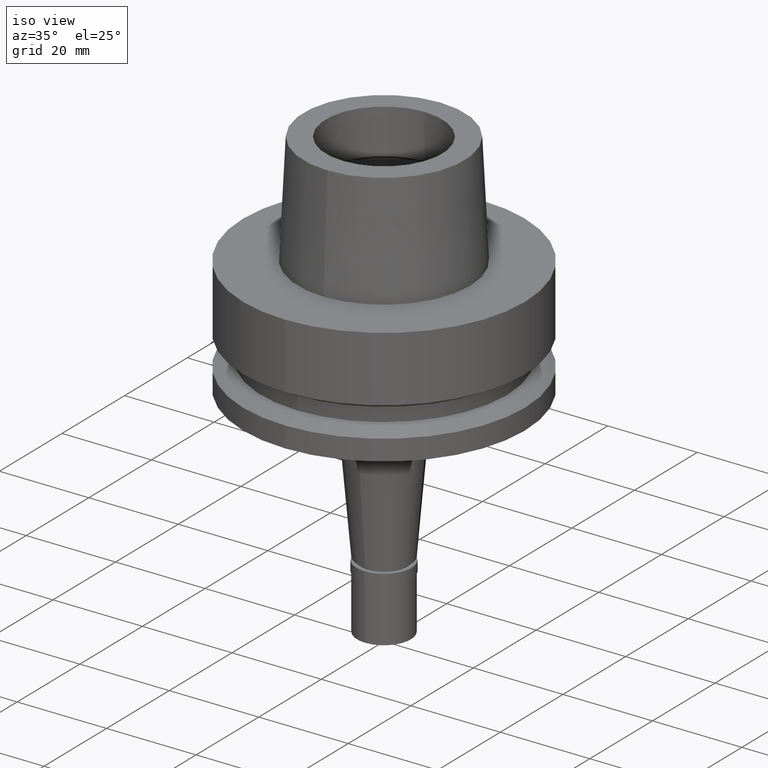
[diagram: clean part render]
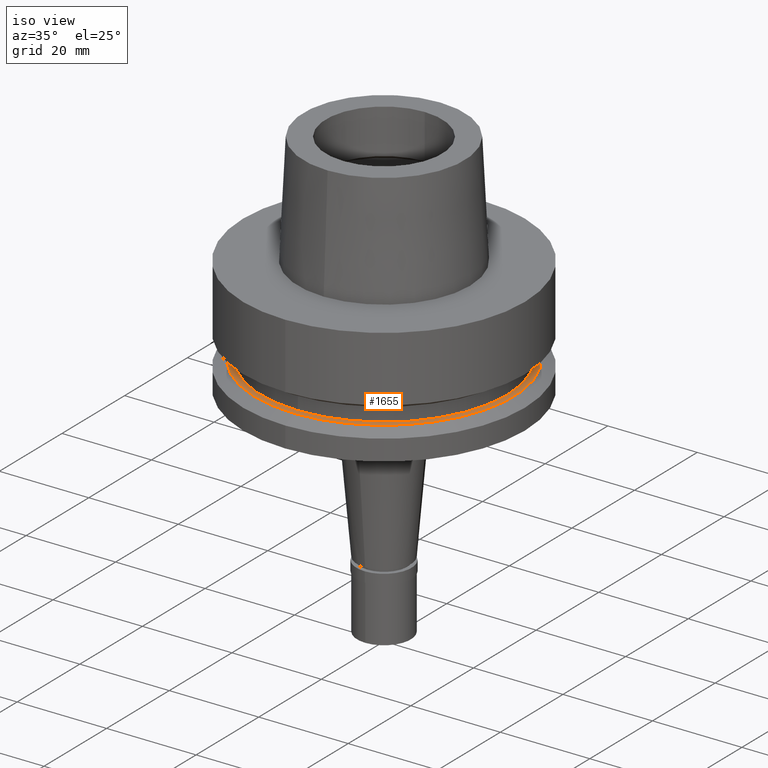
[diagram: same view with one face highlighted and labeled with its STEP entity id]
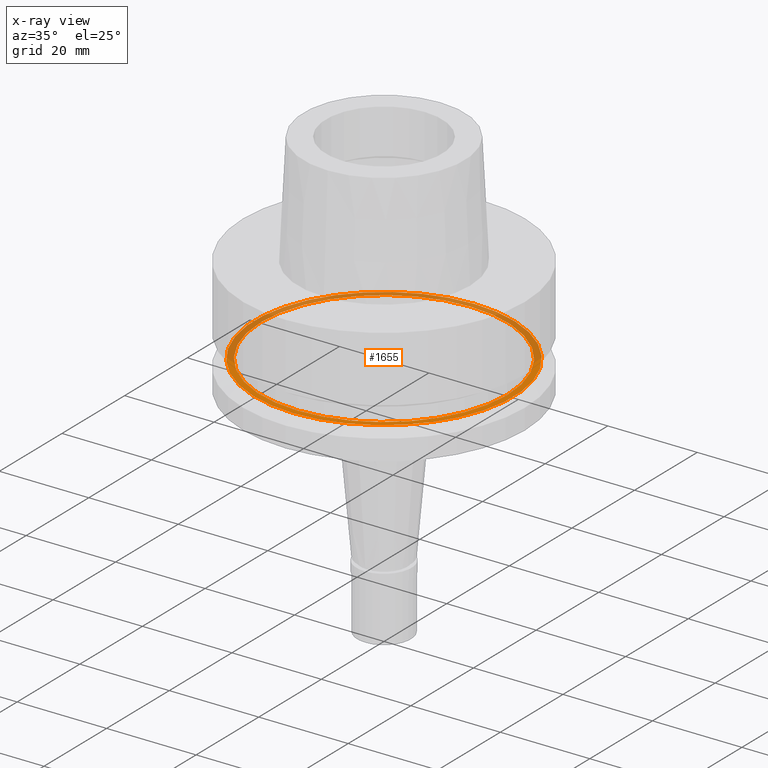
[diagram: x-ray of the same camera — body ghosted, the highlighted face saturated]
A machine part, iso view. The second image highlights one B-rep face of the part: STEP entity #1655.
The next image is the same camera in x-ray: the body ghosted, the highlighted face saturated — about 51% of this face is hidden behind the body in this view.
In plain terms, the highlighted planar face has unit normal (0, 0, -1).
Its self-contained STEP definition (entity closure, byte-faithful):
#116 = DIRECTION ( 'NONE',  ( 0.0000000000000000000, -1.000000000000000000, 0.0000000000000000000 ) ) ;
#137 = DIRECTION ( 'NONE',  ( 0.0000000000000000000, 0.0000000000000000000, -1.000000000000000000 ) ) ;
#175 = CIRCLE ( 'NONE', #2527, 27.50000000000000000 ) ;
#241 = AXIS2_PLACEMENT_3D ( 'NONE', #990, #1637, #2465 ) ;
#308 = EDGE_CURVE ( 'NONE', #1265, #1664, #1670, .T. ) ;
#334 = PLANE ( 'NONE',  #2175 ) ;
#353 = DIRECTION ( 'NONE',  ( 0.0000000000000000000, -1.000000000000000000, 0.0000000000000000000 ) ) ;
#479 = AXIS2_PLACEMENT_3D ( 'NONE', #1992, #1765, #2627 ) ;
#640 = ORIENTED_EDGE ( 'NONE', *, *, #2433, .F. ) ;
#781 = VERTEX_POINT ( 'NONE', #1091 ) ;
#891 = CARTESIAN_POINT ( 'NONE',  ( 0.0000000000000000000, 27.50000000000000000, -19.87500000000000000 ) ) ;
#903 = EDGE_LOOP ( 'NONE', ( #640, #2422 ) ) ;
#985 = FACE_BOUND ( 'NONE', #903, .T. ) ;
#990 = CARTESIAN_POINT ( 'NONE',  ( 0.0000000000000000000, 0.0000000000000000000, -19.87500000000000000 ) ) ;
#1091 = CARTESIAN_POINT ( 'NONE',  ( 0.0000000000000000000, -27.50000000000000000, -19.87500000000000000 ) ) ;
#1204 = CARTESIAN_POINT ( 'NONE',  ( 0.0000000000000000000, -28.89759526419000224, -19.87500000000000000 ) ) ;
#1214 = CIRCLE ( 'NONE', #2302, 27.50000000000000000 ) ;
#1237 = CARTESIAN_POINT ( 'NONE',  ( 0.0000000000000000000, 1.589591545292999879E-14, -19.87500000000000000 ) ) ;
#1265 = VERTEX_POINT ( 'NONE', #1204 ) ;
#1291 = EDGE_CURVE ( 'NONE', #781, #1932, #1214, .T. ) ;
#1320 = ORIENTED_EDGE ( 'NONE', *, *, #308, .F. ) ;
#1430 = CIRCLE ( 'NONE', #241, 28.89759526419000224 ) ;
#1483 = DIRECTION ( 'NONE',  ( 0.0000000000000000000, 0.0000000000000000000, 1.000000000000000000 ) ) ;
#1595 = CARTESIAN_POINT ( 'NONE',  ( 0.0000000000000000000, 28.89759526419000224, -19.87500000000000000 ) ) ;
#1637 = DIRECTION ( 'NONE',  ( 0.0000000000000000000, 0.0000000000000000000, -1.000000000000000000 ) ) ;
#1655 = ADVANCED_FACE ( 'NONE', ( #2005, #985 ), #334, .F. ) ;
#1664 = VERTEX_POINT ( 'NONE', #1595 ) ;
#1670 = CIRCLE ( 'NONE', #479, 28.89759526419000224 ) ;
#1675 = DIRECTION ( 'NONE',  ( 0.0000000000000000000, 0.0000000000000000000, 1.000000000000000000 ) ) ;
#1765 = DIRECTION ( 'NONE',  ( 0.0000000000000000000, 0.0000000000000000000, -1.000000000000000000 ) ) ;
#1806 = CARTESIAN_POINT ( 'NONE',  ( 0.0000000000000000000, 0.0000000000000000000, -19.87500000000000000 ) ) ;
#1932 = VERTEX_POINT ( 'NONE', #891 ) ;
#1992 = CARTESIAN_POINT ( 'NONE',  ( 0.0000000000000000000, 0.0000000000000000000, -19.87500000000000000 ) ) ;
#2005 = FACE_OUTER_BOUND ( 'NONE', #2362, .T. ) ;
#2175 = AXIS2_PLACEMENT_3D ( 'NONE', #1806, #137, #353 ) ;
#2246 = EDGE_CURVE ( 'NONE', #1664, #1265, #1430, .T. ) ;
#2269 = CARTESIAN_POINT ( 'NONE',  ( 0.0000000000000000000, 1.589591545292999879E-14, -19.87500000000000000 ) ) ;
#2287 = ORIENTED_EDGE ( 'NONE', *, *, #2246, .F. ) ;
#2302 = AXIS2_PLACEMENT_3D ( 'NONE', #1237, #1675, #116 ) ;
#2362 = EDGE_LOOP ( 'NONE', ( #2287, #1320 ) ) ;
#2422 = ORIENTED_EDGE ( 'NONE', *, *, #1291, .F. ) ;
#2433 = EDGE_CURVE ( 'NONE', #1932, #781, #175, .T. ) ;
#2465 = DIRECTION ( 'NONE',  ( 0.0000000000000000000, 1.000000000000000000, 0.0000000000000000000 ) ) ;
#2526 = DIRECTION ( 'NONE',  ( 0.0000000000000000000, 1.000000000000000000, 0.0000000000000000000 ) ) ;
#2527 = AXIS2_PLACEMENT_3D ( 'NONE', #2269, #1483, #2526 ) ;
#2627 = DIRECTION ( 'NONE',  ( 0.0000000000000000000, -1.000000000000000000, 0.0000000000000000000 ) ) ;